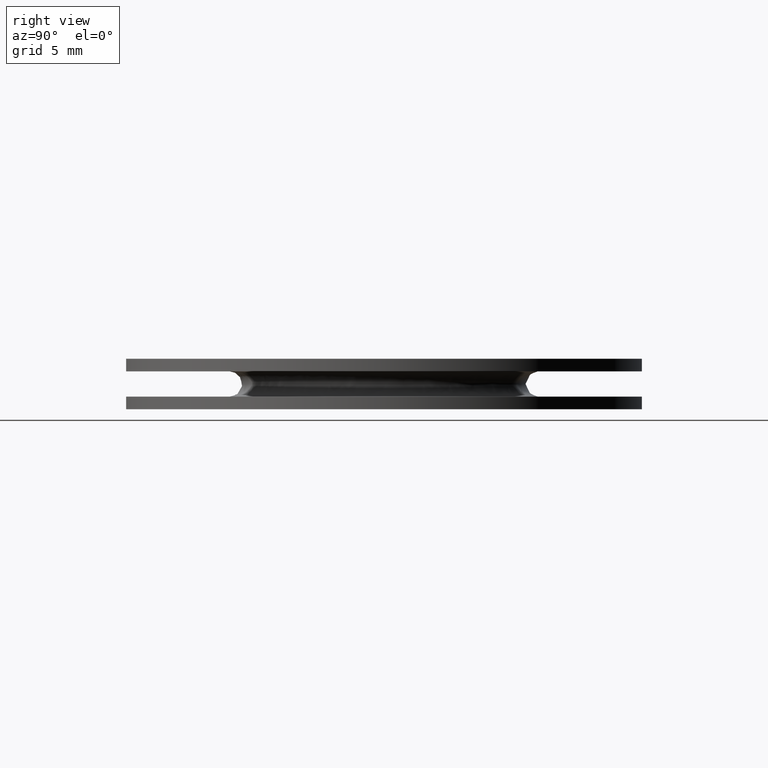
[diagram: clean part render]
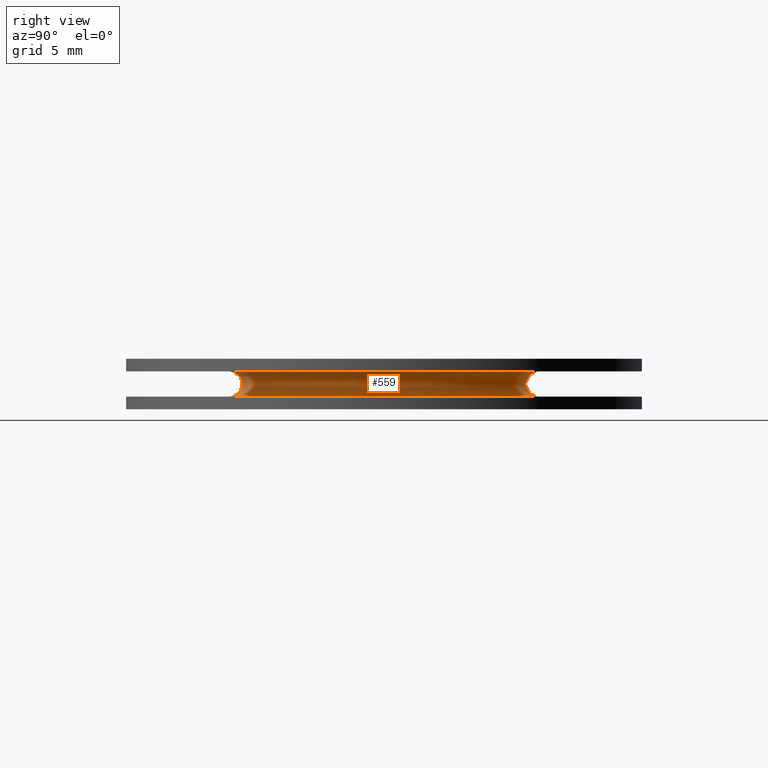
[diagram: same view with one face highlighted and labeled with its STEP entity id]
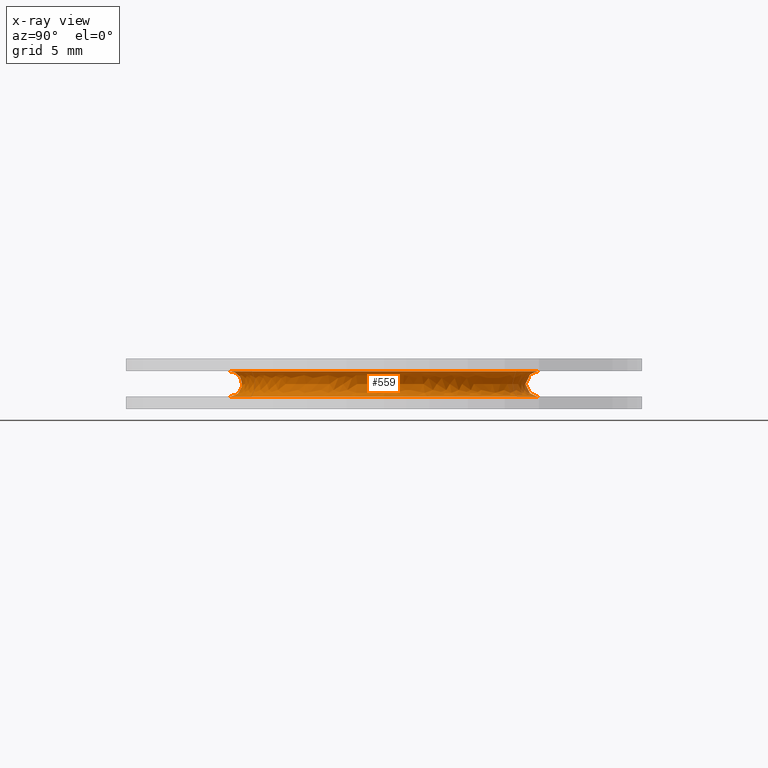
[diagram: x-ray of the same camera — body ghosted, the highlighted face saturated]
A machine part, right view. The second image highlights one B-rep face of the part: STEP entity #559.
The next image is the same camera in x-ray: the body ghosted, the highlighted face saturated — about 0% of this face is hidden behind the body in this view.
In plain terms, the highlighted face is a freeform B-spline surface patch.
Its self-contained STEP definition (entity closure, byte-faithful):
#416=CARTESIAN_POINT('',(-0.430321636716888,6.155950344685884,0.505062580793688));
#417=CARTESIAN_POINT('',(-0.254141152637888,6.168265953165718,0.505062580793688));
#418=CARTESIAN_POINT('',(-0.077544686311253,6.170485246630920,0.505062580793688));
#419=CARTESIAN_POINT('',(6.092940560319667,6.248029932942172,0.505062580793688));
#420=CARTESIAN_POINT('',(6.170485246630920,0.077544686311253,0.505062580793688));
#421=CARTESIAN_POINT('',(6.248029932942172,-6.092940560319665,0.505062580793688));
#422=CARTESIAN_POINT('',(0.077544686311248,-6.170485246630920,0.505062580793688));
#423=CARTESIAN_POINT('',(-0.390505970247348,5.586368792623893,0.423188206711083));
#424=CARTESIAN_POINT('',(-0.230626649749269,5.597544894934939,0.423188206711083));
#425=CARTESIAN_POINT('',(-0.070369835912816,5.599558847462413,0.423188206711083));
#426=CARTESIAN_POINT('',(5.529189011549597,5.669928683375229,0.423188206711083));
#427=CARTESIAN_POINT('',(5.599558847462413,0.070369835912817,0.423188206711083));
#428=CARTESIAN_POINT('',(5.669928683375229,-5.529189011549597,0.423188206711083));
#429=CARTESIAN_POINT('',(0.070369835912812,-5.599558847462413,0.423188206711083));
#430=CARTESIAN_POINT('',(-0.390505970247348,5.586368792623896,1.000000000000000));
#431=CARTESIAN_POINT('',(-0.230626649749269,5.597544894934940,1.000000000000000));
#432=CARTESIAN_POINT('',(-0.070369835912816,5.599558847462412,1.000000000000000));
#433=CARTESIAN_POINT('',(5.529189011549596,5.669928683375229,1.000000000000000));
#434=CARTESIAN_POINT('',(5.599558847462412,0.070369835912817,1.000000000000000));
#435=CARTESIAN_POINT('',(5.669928683375229,-5.529189011549596,1.000000000000000));
#436=CARTESIAN_POINT('',(0.070369835912812,-5.599558847462412,1.000000000000000));
#437=CARTESIAN_POINT('',(-0.390505970247348,5.586368792623896,1.576812656901736));
#438=CARTESIAN_POINT('',(-0.230626649749269,5.597544894934940,1.576812656901736));
#439=CARTESIAN_POINT('',(-0.070369835912816,5.599558847462413,1.576812656901735));
#440=CARTESIAN_POINT('',(5.529189011549597,5.669928683375229,1.576812656901736));
#441=CARTESIAN_POINT('',(5.599558847462413,0.070369835912817,1.576812656901735));
#442=CARTESIAN_POINT('',(5.669928683375229,-5.529189011549597,1.576812656901736));
#443=CARTESIAN_POINT('',(0.070369835912812,-5.599558847462413,1.576812656901735));
#444=CARTESIAN_POINT('',(-0.430321687867953,6.155951076425562,1.494937314022000));
#445=CARTESIAN_POINT('',(-0.254141182846898,6.168266686369314,1.494937314022000));
#446=CARTESIAN_POINT('',(-0.077544695528761,6.170485980098318,1.494937314022000));
#447=CARTESIAN_POINT('',(6.092941284569554,6.248030675627077,1.494937314021999));
#448=CARTESIAN_POINT('',(6.170485980098318,0.077544695528761,1.494937314022000));
#449=CARTESIAN_POINT('',(6.248030675627077,-6.092941284569554,1.494937314021999));
#450=CARTESIAN_POINT('',(0.077544695528756,-6.170485980098318,1.494937314022000));
#458=(BOUNDED_SURFACE()B_SPLINE_SURFACE(2,2,((#416,#423,#430,#437,#444),(#417,#424,#431,#438,#445),(#418,#425,#432,#439,#446),(#419,#426,#433,#440,#447),(#420,#427,#434,#441,#448),(#421,#428,#435,#442,#449),(#422,#429,#436,#443,#450)),.UNSPECIFIED.,.F.,.F.,.U.)B_SPLINE_SURFACE_WITH_KNOTS((3,2,2,3),(3,2,3),(0.0,0.408975737708119,10.633378931161820,20.857782124615522),(0.0,0.913128015422518,1.826256919891498),.UNSPECIFIED.)GEOMETRIC_REPRESENTATION_ITEM()RATIONAL_B_SPLINE_SURFACE(((0.963494698001351,0.635663715482510,0.977505821353428,0.635663382655666,0.963495336372445),(0.974118665515234,0.642672856972390,0.988284282420452,0.642672520475633,0.974119310925323),(0.985666455333557,0.650291488394807,1.0,0.650291147909016,0.985667108394725),(0.696971434554465,0.459825521191861,0.707106781186548,0.459825280432049,0.696971896338446),(0.985666455333557,0.650291488394807,1.0,0.650291147909016,0.985667108394725),(0.696971434554465,0.459825521191861,0.707106781186548,0.459825280432049,0.696971896338446),(0.985666455333557,0.650291488394807,1.0,0.650291147909016,0.985667108394725)))REPRESENTATION_ITEM('')SURFACE());
#459=CARTESIAN_POINT('',(-0.425372906173854,6.085151633952344,1.500000000000000));
#460=VERTEX_POINT('',#459);
#461=CARTESIAN_POINT('',(6.100001026179940,0.0,1.500000000000000));
#462=VERTEX_POINT('',#461);
#463=CARTESIAN_POINT('',(-0.425372906173854,6.085151633952344,1.500000000000000));
#464=CARTESIAN_POINT('',(-0.212945642674467,6.100001026179940,1.500000000000000));
#465=CARTESIAN_POINT('',(0.0,6.100001026179940,1.500000000000000));
#466=CARTESIAN_POINT('',(6.100001026179941,6.100001026179941,1.500000000000000));
#467=CARTESIAN_POINT('',(6.100001026179940,0.0,1.500000000000000));
#475=(BOUNDED_CURVE()B_SPLINE_CURVE(2,(#463,#464,#465,#466,#467),.UNSPECIFIED.,.F.,.U.)B_SPLINE_CURVE_WITH_KNOTS((3,2,3),(0.237833686534251,0.250000000000000,0.500000000000000),.UNSPECIFIED.)CURVE()GEOMETRIC_REPRESENTATION_ITEM()RATIONAL_B_SPLINE_CURVE((0.972879876385198,0.985746277151693,1.0,0.707106781186548,1.0))REPRESENTATION_ITEM(''));
#476=EDGE_CURVE('',#460,#462,#475,.T.);
#477=ORIENTED_EDGE('',*,*,#476,.T.);
#478=CARTESIAN_POINT('',(0.076651915141022,-6.099520192318012,1.499999999998727));
#479=VERTEX_POINT('',#478);
#480=CARTESIAN_POINT('',(6.100001026179940,0.0,1.500000000000000));
#481=CARTESIAN_POINT('',(6.100001026179941,-6.023824724975726,1.500000000000000));
#482=CARTESIAN_POINT('',(0.076651915141022,-6.099520192318013,1.499999999998727));
#490=(BOUNDED_CURVE()B_SPLINE_CURVE(2,(#480,#481,#482),.UNSPECIFIED.,.F.,.U.)B_SPLINE_CURVE_WITH_KNOTS((3,3),(0.500000000000000,0.747784323339047),.UNSPECIFIED.)CURVE()GEOMETRIC_REPRESENTATION_ITEM()RATIONAL_B_SPLINE_CURVE((1.0,0.709702607862853,0.994854358748050))REPRESENTATION_ITEM(''));
#491=EDGE_CURVE('',#462,#479,#490,.T.);
#492=ORIENTED_EDGE('',*,*,#491,.T.);
#493=CARTESIAN_POINT('',(0.076652855855130,-6.099519369557932,0.500000000000000));
#494=VERTEX_POINT('',#493);
#495=CARTESIAN_POINT('',(0.076652855855130,-6.099519369557932,0.500000000000000));
#496=CARTESIAN_POINT('',(0.070369835912816,-5.599558847462412,0.500000000012765));
#497=CARTESIAN_POINT('',(0.070369835912816,-5.599558847462412,1.000000000000000));
#498=CARTESIAN_POINT('',(0.070369835912816,-5.599558847462411,1.500000810868345));
#499=CARTESIAN_POINT('',(0.076651915141022,-6.099520192318012,1.499999999998728));
#507=(BOUNDED_CURVE()B_SPLINE_CURVE(2,(#495,#496,#497,#498,#499),.UNSPECIFIED.,.F.,.U.)B_SPLINE_CURVE_WITH_KNOTS((3,2,3),(-3.781082537376819,-2.0,-0.218915492515559),.UNSPECIFIED.)CURVE()GEOMETRIC_REPRESENTATION_ITEM()RATIONAL_B_SPLINE_CURVE((0.930396133914804,0.682054299135544,1.0,0.682053947446481,0.930396683311869))REPRESENTATION_ITEM(''));
#508=EDGE_CURVE('',#494,#479,#507,.T.);
#509=ORIENTED_EDGE('',*,*,#508,.F.);
#510=CARTESIAN_POINT('',(6.100001000000000,0.0,0.500000000000000));
#511=VERTEX_POINT('',#510);
#512=CARTESIAN_POINT('',(6.100001000000000,0.0,0.500000000000000));
#513=CARTESIAN_POINT('',(6.100001000000001,-6.023823759945135,0.500000000000000));
#514=CARTESIAN_POINT('',(0.076652855855130,-6.099519369557932,0.500000000000000));
#522=(BOUNDED_CURVE()B_SPLINE_CURVE(2,(#512,#513,#514),.UNSPECIFIED.,.F.,.U.)B_SPLINE_CURVE_WITH_KNOTS((3,3),(0.500000000000000,0.747784295921687),.UNSPECIFIED.)CURVE()GEOMETRIC_REPRESENTATION_ITEM()RATIONAL_B_SPLINE_CURVE((1.0,0.709702639984288,0.994854295643917))REPRESENTATION_ITEM(''));
#523=EDGE_CURVE('',#511,#494,#522,.T.);
#524=ORIENTED_EDGE('',*,*,#523,.F.);
#525=CARTESIAN_POINT('',(-0.425372904344310,6.085151607728106,0.500000000000000));
#526=VERTEX_POINT('',#525);
#527=CARTESIAN_POINT('',(-0.425372904344310,6.085151607728106,0.500000000000000));
#528=CARTESIAN_POINT('',(-0.212945641764163,6.100000999999999,0.500000000000000));
#529=CARTESIAN_POINT('',(0.0,6.100001000000000,0.500000000000000));
#530=CARTESIAN_POINT('',(6.100001000000002,6.100001000000002,0.500000000000000));
#531=CARTESIAN_POINT('',(6.100001000000000,0.0,0.500000000000000));
#539=(BOUNDED_CURVE()B_SPLINE_CURVE(2,(#527,#528,#529,#530,#531),.UNSPECIFIED.,.F.,.U.)B_SPLINE_CURVE_WITH_KNOTS((3,2,3),(0.237833686534047,0.250000000000000,0.500000000000000),.UNSPECIFIED.)CURVE()GEOMETRIC_REPRESENTATION_ITEM()RATIONAL_B_SPLINE_CURVE((0.972879876384767,0.985746277151455,1.0,0.707106781186548,1.0))REPRESENTATION_ITEM(''));
#540=EDGE_CURVE('',#526,#511,#539,.T.);
#541=ORIENTED_EDGE('',*,*,#540,.F.);
#542=CARTESIAN_POINT('',(-0.425372904344310,6.085151607728106,0.500000000000000));
#543=CARTESIAN_POINT('',(-0.390506278555729,5.586368771072093,0.500000000527002));
#544=CARTESIAN_POINT('',(-0.390506278555729,5.586368771072094,1.000000000000000));
#545=CARTESIAN_POINT('',(-0.390506278555729,5.586368771072092,1.500000025869017));
#546=CARTESIAN_POINT('',(-0.425372906173854,6.085151633952344,1.499999999999999));
#554=(BOUNDED_CURVE()B_SPLINE_CURVE(2,(#542,#543,#544,#545,#546),.UNSPECIFIED.,.F.,.U.)B_SPLINE_CURVE_WITH_KNOTS((3,2,3),(-3.781082536127432,-2.0,-0.218917399741063),.UNSPECIFIED.)CURVE()GEOMETRIC_REPRESENTATION_ITEM()RATIONAL_B_SPLINE_CURVE((0.909467617598506,0.666712034080263,0.977505800795127,0.666712022889501,0.909467635080326))REPRESENTATION_ITEM(''));
#555=EDGE_CURVE('',#526,#460,#554,.T.);
#556=ORIENTED_EDGE('',*,*,#555,.T.);
#557=EDGE_LOOP('',(#477,#492,#509,#524,#541,#556));
#558=FACE_OUTER_BOUND('',#557,.T.);
#559=ADVANCED_FACE('',(#558),#458,.F.);